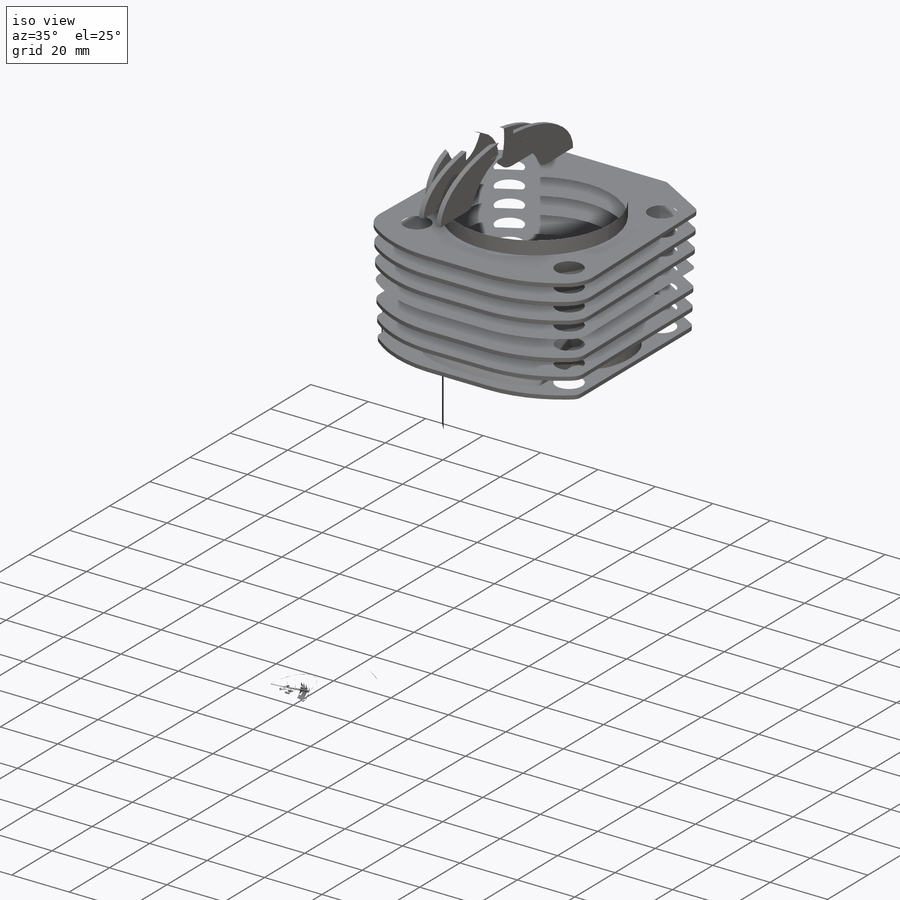
[diagram: iso view]
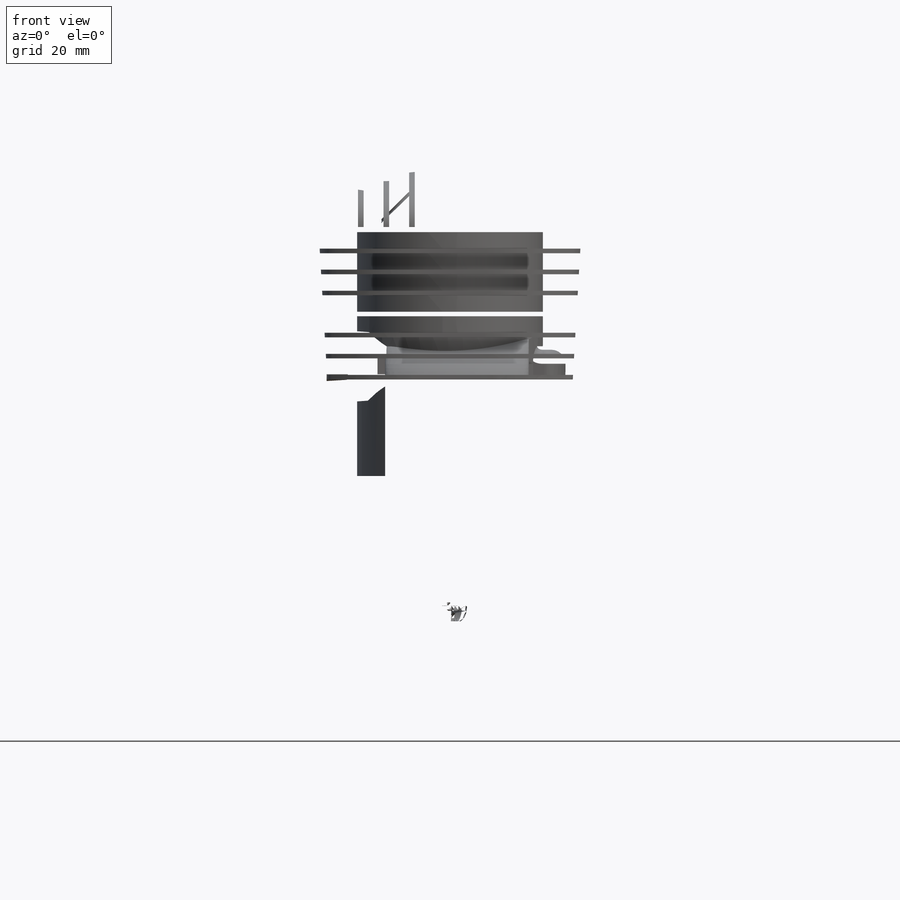
[diagram: front view]
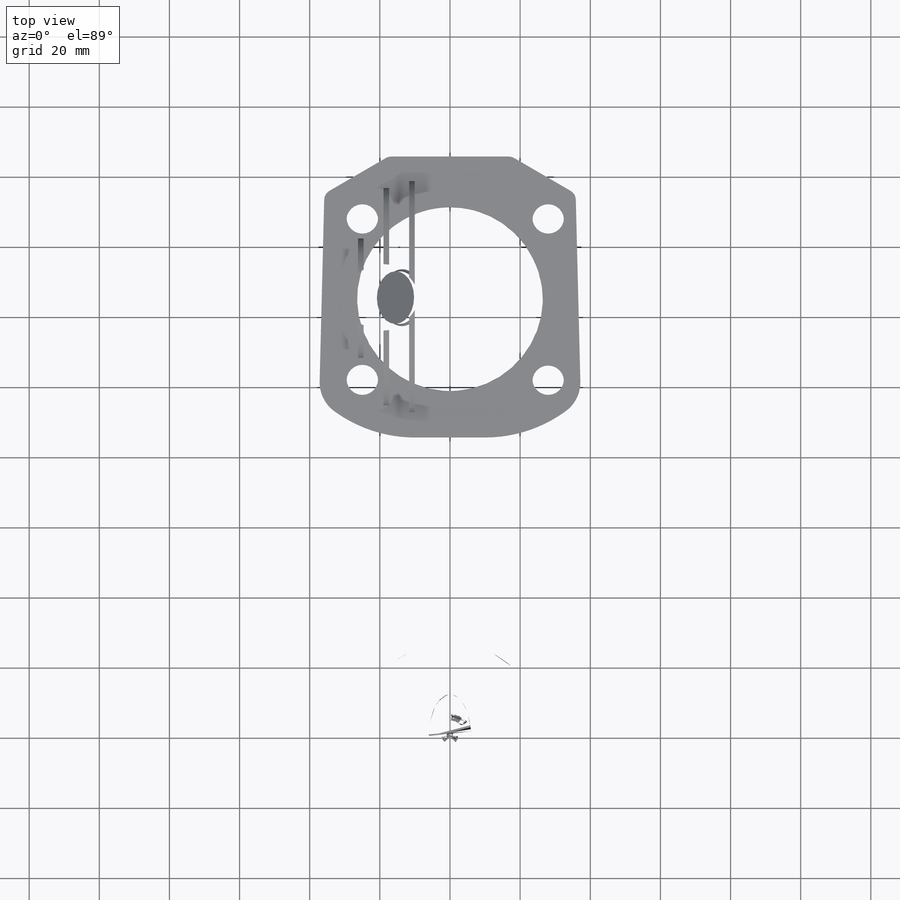
[diagram: top view]
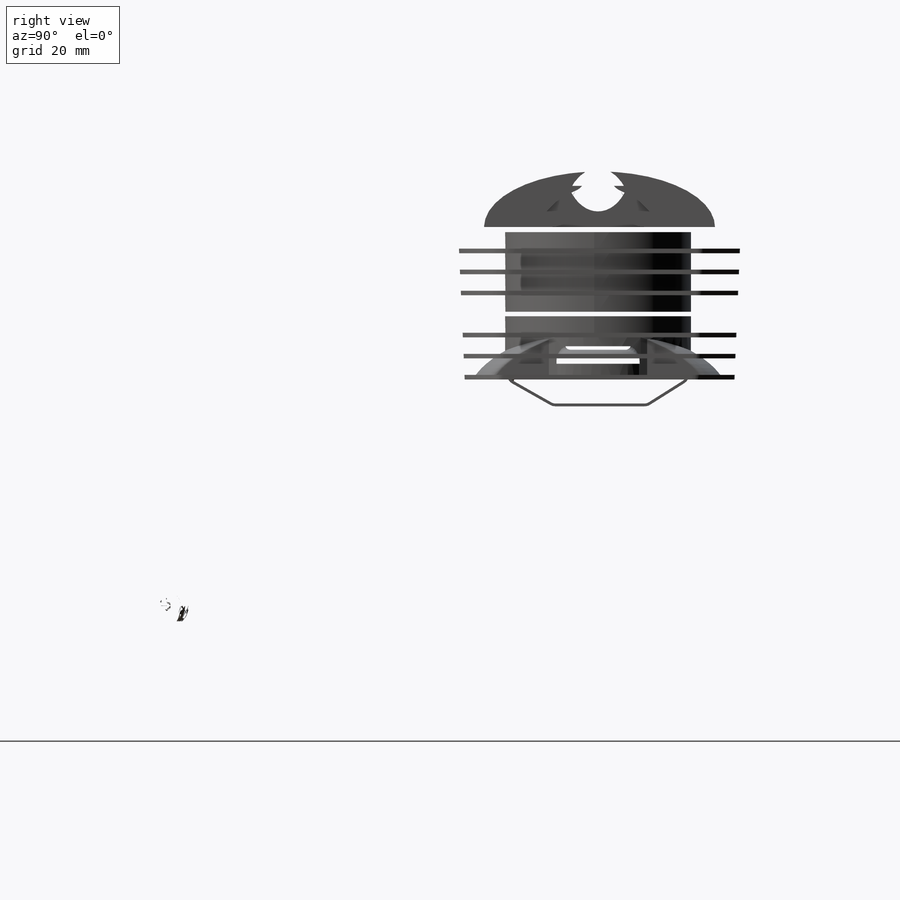
[diagram: right view]
SOLIDWORKS PART (.sldprt)
format: sldprt  version: not decoded by parser v0  size: 9,041,408 bytes
history: native  units: mm
features: plane x21, extrude x21, sketch x11, cut_extrude x9, chamfer x3, mirror x2, material x1, revolve x1, sweep x1, dome x1, fillet x1, boolean_combine x1 + 37 further entries (+10 scaffold rows collapsed)
feature tree (120):
  scaffold x10  (default folders/planes/origin — collapsed)
  material  "JC60"
  plane  "Спереди"
  plane  "Сверху"
  plane  "Справа"
  sketch  "front"  dims[D1=~15.058937mm]
  "right"
  sketch  "Картинка эскиза2"  dims[c1.D1=5.0mm c1.D2=5.0mm c1.D3=5.0mm c1.D4=~20.741189mm c1.D5=22.0mm c1.D6=4.5mm c1.D7=10.0mm c1.D8=3.0mm c1.D9=20.0mm c1.D10=25.0mm c1.D11=0.5mm c1.D12=11.0mm c1.D13=7.5mm c1.D14=1.0mm c1.D15=106.0mm c1.D16=34.0mm c1.D17=134.0mm c2.D1=123.0mm c2.D2=~29.137069mm]
  "Эскиз3"
  revolve  "Повернуть1"  Angle=360deg
  plane  "Плоскость1"  Offset=37mm
  "Эскиз4"
  extrude  "Бобышка-Вытянуть1"  Depth=30mm
  "Эскиз5"
  cut_extrude  "Вырез-Вытянуть1"  [1 undecoded]
  "Эскиз6"
  cut_extrude  "Вырез-Вытянуть2"  [1 undecoded]
  "Эскиз7"
  extrude  "Бобышка-Вытянуть2"  Depth=71mm
  "Эскиз8"
  plane  "Плоскость3"  Offset=5mm
  "Эскиз10"
  sweep  "По траектории4"
  plane  "Плоскость4"  Offset=123mm
  mirror  "Зеркальное отражение1"
  "Эскиз11"
  extrude  "Бобышка-Вытянуть3"  [1 undecoded]
  "Эскиз12"
  extrude  "Бобышка-Вытянуть4"  Depth=8mm
  "Эскиз14"
  extrude  "Бобышка-Вытянуть5"  Depth=5mm
  "Эскиз16"
  cut_extrude  "Вырез-Вытянуть3"  Depth=4mm
  "Эскиз18"
  dome  "Купол1"
  fillet  "Скругление1"  Radius=3mm
  plane  "Плоскость5"  Offset=123mm
  "Эскиз19"
  extrude  "Бобышка-Вытянуть6"  Depth=4mm
  sketch  "Трехмерный эскиз2"  dims[c1.D1=~14.855463mm c2.D1=~27.327837mm]
  plane  "Плоскость6"
  "Эскиз22"
  extrude  "Бобышка-Вытянуть7"  Depth=4mm
  sketch  "Скругление2"  dims[D1=1.0mm]
  "Эскиз23"
  extrude  "Бобышка-Вытянуть8"  Depth=36mm
  sketch  "Скругление3"  dims[D1=1.0mm]
  sketch  "Скругление4"  dims[D1=4.0mm]
  plane  "Плоскость7"  Offset=64.5mm
  plane  "Плоскость8"  Offset=6mm
  plane  "Плоскость9"  Offset=12mm
  plane  "Плоскость10"  Offset=18mm
  plane  "Плоскость11"  Offset=24mm
  plane  "Плоскость12"  Offset=30mm
  plane  "Плоскость13"  Offset=36mm
  plane  "Плоскость14"  Offset=42mm
  "Эскиз27"
  "Эскиз28"
  extrude  "Бобышка-Вытянуть9"  [1 undecoded]
  "Эскиз28<2>"
  "Эскиз30"
  cut_extrude  "Вырез-Вытянуть4"  [1 undecoded]
  plane  "Плоскость15"  Offset=2.75mm
  plane  "Плоскость16"  Offset=7.3mm
  plane  "Плоскость17"  Offset=14.6mm
  plane  "Плоскость18"  Offset=21.9mm
  "Эскиз32"
  "Эскиз33"
  "Эскиз34"
  "Эскиз35"
  extrude  "Бобышка-Вытянуть10"  Depth=1.6mm
  extrude  "Бобышка-Вытянуть11"  Depth=1.6mm
  extrude  "Бобышка-Вытянуть12"  Depth=1.6mm
  extrude  "Бобышка-Вытянуть13"  Depth=1.6mm
  "Эскиз36"
  mirror  "Зеркальное отражение4"
  boolean_combine  "Соединить1"
  cut_extrude  "Вырез-Вытянуть6"  [1 undecoded]
  "Эскиз37"
  cut_extrude  "Вырез-Вытянуть7"  Depth=1.8mm
  "Эскиз38"
  plane  "Плоскость19"  Offset=39mm
  "Эскиз41"
  extrude  "Бобышка-Вытянуть14"  Depth=3.8mm
  "Эскиз43"
  extrude  "Бобышка-Вытянуть15"  Depth=29mm
  cut_extrude  "Вырез-Вытянуть9"  [1 undecoded]
  "Эскиз44"
  extrude  "Бобышка-Вытянуть16"  Depth=5mm
  "Эскиз45"
  cut_extrude  "Вырез-Вытянуть10"  Depth=4mm
  "Эскиз46"
  extrude  "Бобышка-Вытянуть17"  Depth=27mm
  "Эскиз48"
  extrude  "Бобышка-Вытянуть18"  Depth=34mm
  sketch  "Скругление5"  dims[D1=0.5mm]
  chamfer  "Фаска1"  Distance=2mm Angle=45deg
  sketch  "Скругление6"  dims[D1=0.5mm]
  sketch  "Скругление7"  dims[D1=1.0mm]
  sketch  "Скругление8"  dims[D1=5.0mm]
  chamfer  "Фаска2"  Distance=1mm Angle=45deg
  chamfer  "Фаска3"  Distance=0.5mm Angle=45deg
  "Эскиз50"
  extrude  "Бобышка-Вытянуть19"  Depth=3mm
  "Эскиз53"
  extrude  "Бобышка-Вытянуть20"  Depth=30mm
  "Эскиз54"
  extrude  "Бобышка-Вытянуть21"  Depth=3.25mm
  "Эскиз55"
  cut_extrude  "Вырез-Вытянуть11"  [1 undecoded]
  sketch  "Скругление9"  dims[D1=2.0mm]
decode coverage: 38 of 51 modeling features carry decoded parameters; 37 rows unclassified (native names shown)
note: ~ marks probable driven/reference dimensions
note: 8 parameter values undecoded
summary: no parameter record found for 8 features
note: suppression state not decoded; provenance and decode notes live in map.json
